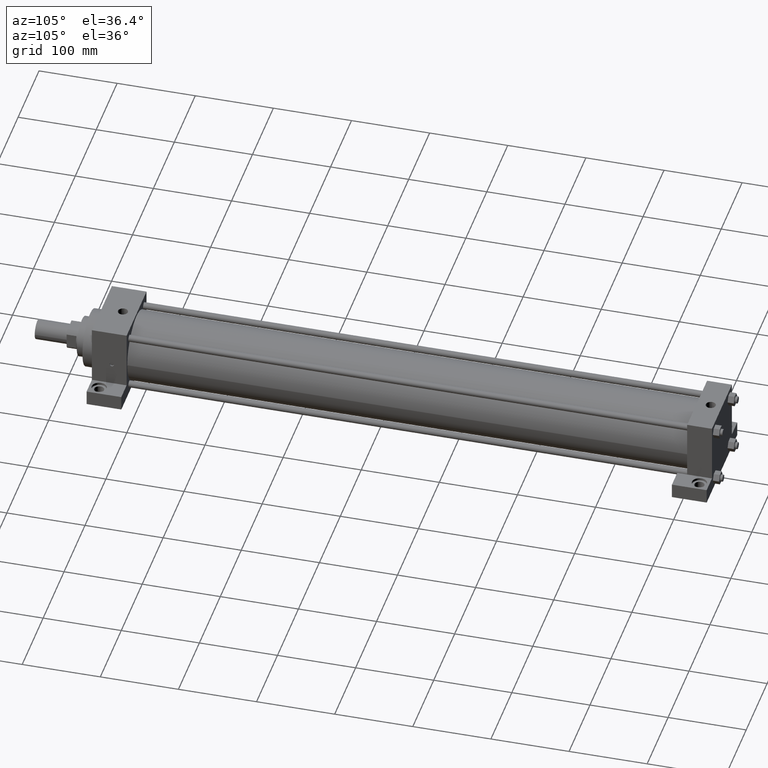
[diagram: clean part render]
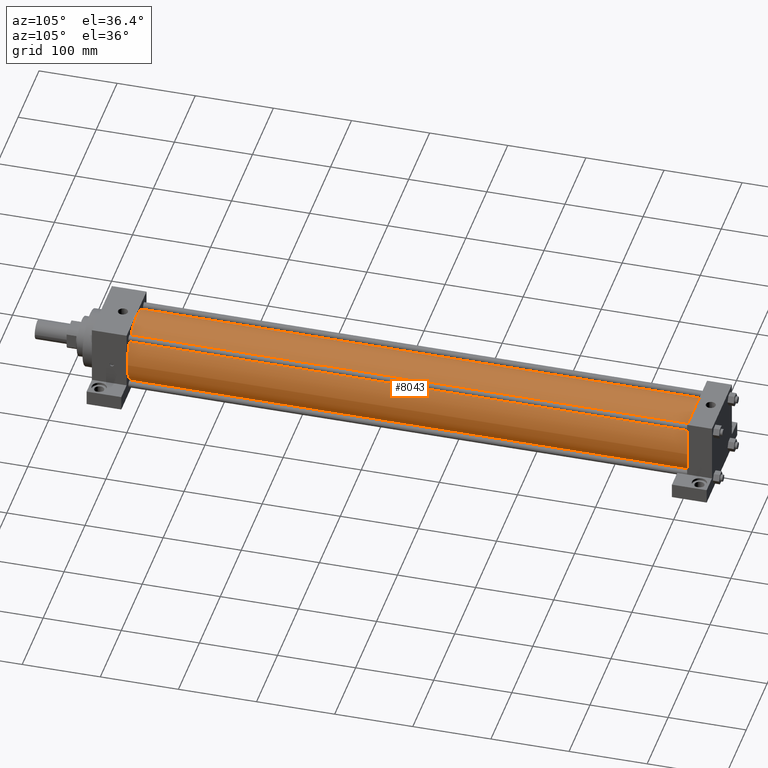
[diagram: same view with one face highlighted and labeled with its STEP entity id]
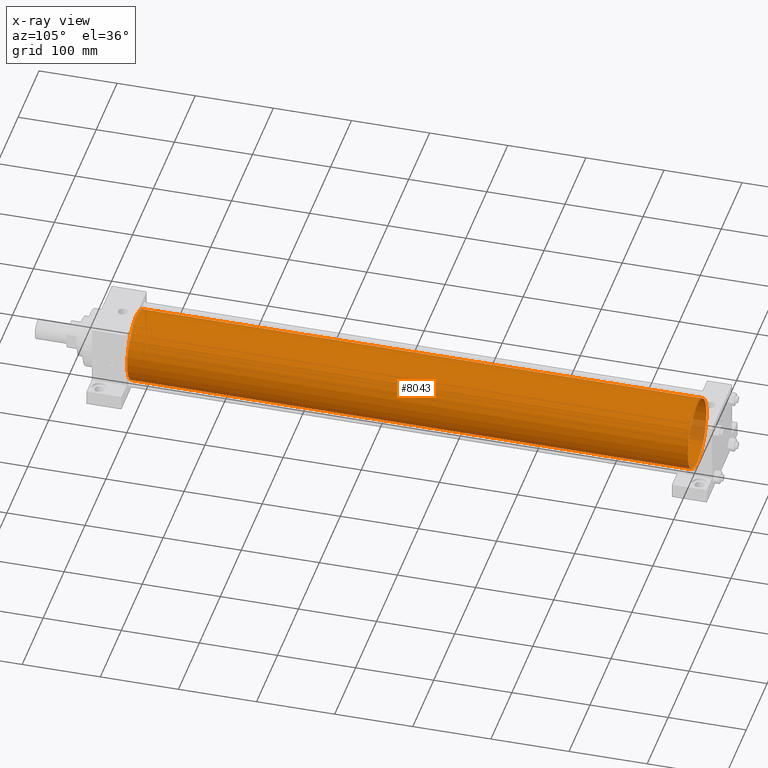
[diagram: x-ray of the same camera — body ghosted, the highlighted face saturated]
A machine part, auxiliary view. The second image highlights one B-rep face of the part: STEP entity #8043.
The next image is the same camera in x-ray: the body ghosted, the highlighted face saturated — about 1% of this face is hidden behind the body in this view.
In plain terms, the highlighted cylindrical surface (bore or boss wall) has radius 44.45 mm, axis along (0, -1, 0).
Its self-contained STEP definition (entity closure, byte-faithful):
#603=EDGE_CURVE('',#609,#609,#604,.T.);
#604=CIRCLE('',#605,4.445000000E+001);
#605=AXIS2_PLACEMENT_3D('',#606,#607,#608);
#606=CARTESIAN_POINT('',(0.000000000E+000,8.572500000E+001,0.000000000E+000));
#607=DIRECTION('',(0.0E+000,1.0E+000,0.0E+000));
#608=DIRECTION('',(1.0E+000,0.0E+000,0.0E+000));
#609=VERTEX_POINT('',#610);
#610=CARTESIAN_POINT('',(4.445000000E+001,8.572500000E+001,0.000000000E+000));
#1120=FACE_OUTER_BOUND('',#1122,.T.);
#1121=FACE_BOUND('',#1123,.T.);
#1122=EDGE_LOOP('',(#1124));
#1123=EDGE_LOOP('',(#1133));
#1124=ORIENTED_EDGE('',*,*,#1125,.F.);
#1125=EDGE_CURVE('',#1131,#1131,#1126,.T.);
#1126=CIRCLE('',#1127,4.445000000E+001);
#1127=AXIS2_PLACEMENT_3D('',#1128,#1129,#1130);
#1128=CARTESIAN_POINT('',(0.000000000E+000,8.032750000E+002,0.000000000E+000));
#1129=DIRECTION('',(0.0E+000,1.0E+000,0.0E+000));
#1130=DIRECTION('',(1.0E+000,0.0E+000,0.0E+000));
#1131=VERTEX_POINT('',#1132);
#1132=CARTESIAN_POINT('',(4.445000000E+001,8.032750000E+002,0.000000000E+000));
#1133=ORIENTED_EDGE('',*,*,#603,.T.);
#1134=CYLINDRICAL_SURFACE('',#1135,4.445000000E+001);
#1135=AXIS2_PLACEMENT_3D('',#1136,#1137,#1138);
#1136=CARTESIAN_POINT('',(0.000000000E+000,8.032750000E+002,0.000000000E+000));
#1137=DIRECTION('',(0.0E+000,-1.0E+000,0.0E+000));
#1138=DIRECTION('',(0.0E+000,0.0E+000,-1.0E+000));
#8043=ADVANCED_FACE('',(#1120,#1121),#1134,.T.);